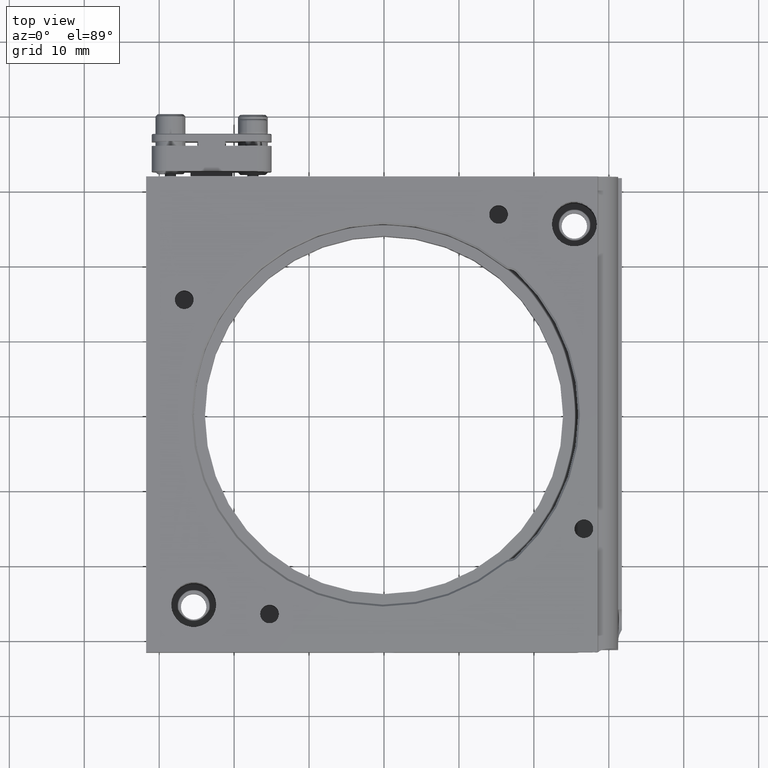
[diagram: clean part render]
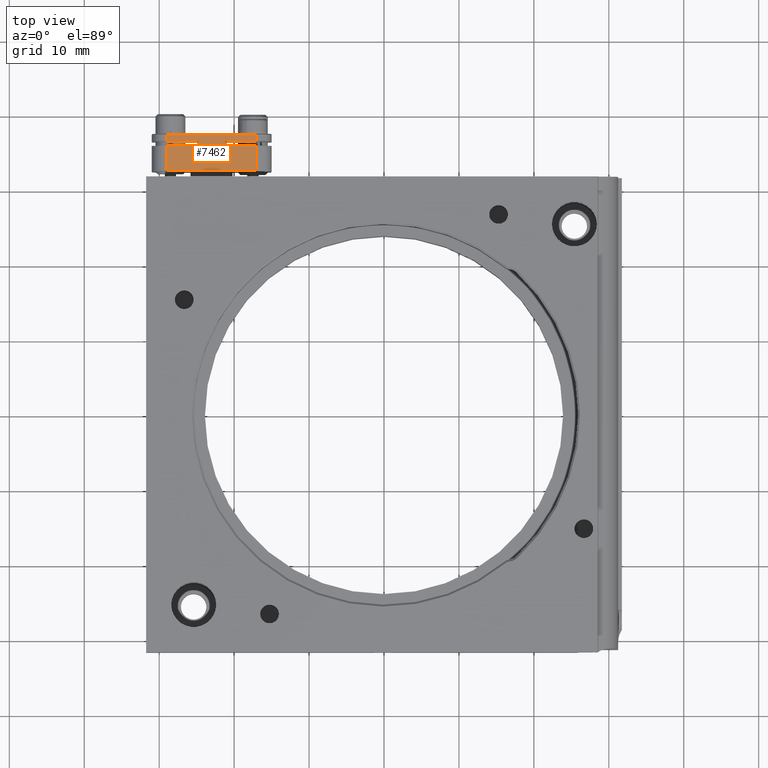
[diagram: same view with one face highlighted and labeled with its STEP entity id]
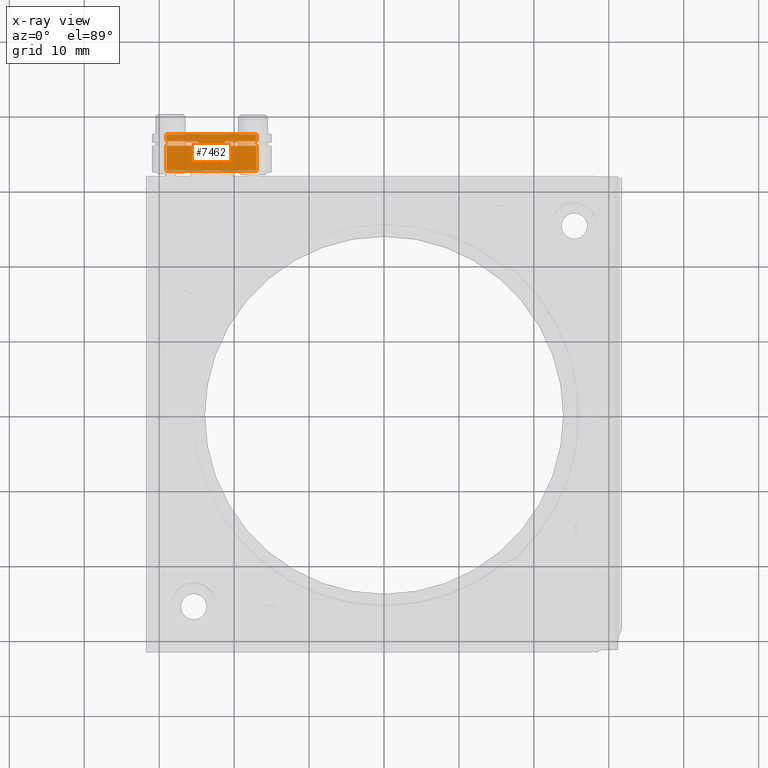
[diagram: x-ray of the same camera — body ghosted, the highlighted face saturated]
A machine part, top view. The second image highlights one B-rep face of the part: STEP entity #7462.
The next image is the same camera in x-ray: the body ghosted, the highlighted face saturated — about 0% of this face is hidden behind the body in this view.
In plain terms, the highlighted planar face has unit normal (0, 0, -1).
Its self-contained STEP definition (entity closure, byte-faithful):
#125 = EDGE_CURVE ( 'NONE', #5470, #12736, #13331, .T. ) ;
#205 = CARTESIAN_POINT ( 'NONE',  ( 6.000000000000003553, 3.400000000000002132, 5.750000000000000888 ) ) ;
#1249 = VERTEX_POINT ( 'NONE', #205 ) ;
#1294 = DIRECTION ( 'NONE',  ( -3.614007241618349264E-16, 1.000000000000000000, -0.000000000000000000 ) ) ;
#1361 = DIRECTION ( 'NONE',  ( -1.000000000000000000, -1.047259278399945846E-16, 0.000000000000000000 ) ) ;
#1387 = VERTEX_POINT ( 'NONE', #13016 ) ;
#1497 = DIRECTION ( 'NONE',  ( -1.000000000000000000, 1.047259278399945846E-16, -0.000000000000000000 ) ) ;
#1613 = VECTOR ( 'NONE', #1497, 1000.000000000000000 ) ;
#1645 = VECTOR ( 'NONE', #4471, 1000.000000000000000 ) ;
#1702 = CARTESIAN_POINT ( 'NONE',  ( 1.800000000000000266, 3.400000000000001688, 5.750000000000000888 ) ) ;
#1924 = ORIENTED_EDGE ( 'NONE', *, *, #7162, .T. ) ;
#1968 = CARTESIAN_POINT ( 'NONE',  ( 6.000000000000003553, 5.000000000000000000, 5.750000000000000888 ) ) ;
#2093 = EDGE_CURVE ( 'NONE', #4371, #12254, #2324, .T. ) ;
#2221 = VERTEX_POINT ( 'NONE', #10080 ) ;
#2282 = VECTOR ( 'NONE', #3607, 1000.000000000000000 ) ;
#2324 = LINE ( 'NONE', #4537, #1613 ) ;
#2339 = ORIENTED_EDGE ( 'NONE', *, *, #2502, .F. ) ;
#2443 = VECTOR ( 'NONE', #5014, 1000.000000000000000 ) ;
#2474 = CARTESIAN_POINT ( 'NONE',  ( -5.999999999999998224, 4.900000000000002132, 5.750000000000000888 ) ) ;
#2502 = EDGE_CURVE ( 'NONE', #12254, #8157, #9137, .T. ) ;
#3105 = LINE ( 'NONE', #1968, #2443 ) ;
#3106 = ORIENTED_EDGE ( 'NONE', *, *, #6643, .F. ) ;
#3138 = VECTOR ( 'NONE', #7985, 1000.000000000000000 ) ;
#3334 = VECTOR ( 'NONE', #1294, 1000.000000000000000 ) ;
#3390 = CARTESIAN_POINT ( 'NONE',  ( 1.800000000000000266, 3.400000000000001688, 5.750000000000000888 ) ) ;
#3607 = DIRECTION ( 'NONE',  ( -0.000000000000000000, 1.000000000000000000, -0.000000000000000000 ) ) ;
#3682 = VECTOR ( 'NONE', #8250, 1000.000000000000000 ) ;
#3875 = DIRECTION ( 'NONE',  ( 0.000000000000000000, -1.000000000000000000, 0.000000000000000000 ) ) ;
#3891 = DIRECTION ( 'NONE',  ( 0.000000000000000000, 0.000000000000000000, -1.000000000000000000 ) ) ;
#4121 = CARTESIAN_POINT ( 'NONE',  ( -1.799999999999999822, 3.400000000000001243, 5.750000000000000888 ) ) ;
#4198 = EDGE_CURVE ( 'NONE', #5188, #1249, #3105, .T. ) ;
#4236 = LINE ( 'NONE', #2474, #5289 ) ;
#4291 = LINE ( 'NONE', #12519, #2282 ) ;
#4371 = VERTEX_POINT ( 'NONE', #6421 ) ;
#4471 = DIRECTION ( 'NONE',  ( 1.000000000000000000, 1.047259278399945846E-16, 0.000000000000000000 ) ) ;
#4537 = CARTESIAN_POINT ( 'NONE',  ( 1.800000000000000044, 4.000000000000000888, 5.750000000000000888 ) ) ;
#4567 = CARTESIAN_POINT ( 'NONE',  ( -5.999999999999998224, 4.000000000000000000, 5.750000000000000888 ) ) ;
#4915 = PLANE ( 'NONE',  #12813 ) ;
#4975 = ORIENTED_EDGE ( 'NONE', *, *, #12556, .T. ) ;
#5014 = DIRECTION ( 'NONE',  ( -0.000000000000000000, 1.000000000000000000, -0.000000000000000000 ) ) ;
#5168 = CARTESIAN_POINT ( 'NONE',  ( 1.800000000000000044, 4.000000000000000888, 5.750000000000000888 ) ) ;
#5188 = VERTEX_POINT ( 'NONE', #6166 ) ;
#5238 = CARTESIAN_POINT ( 'NONE',  ( -1.800000000000000044, 4.000000000000000888, 5.750000000000000888 ) ) ;
#5289 = VECTOR ( 'NONE', #6608, 1000.000000000000000 ) ;
#5307 = VECTOR ( 'NONE', #11218, 1000.000000000000000 ) ;
#5385 = ORIENTED_EDGE ( 'NONE', *, *, #4198, .T. ) ;
#5470 = VERTEX_POINT ( 'NONE', #7904 ) ;
#5703 = CARTESIAN_POINT ( 'NONE',  ( -1.800000000000000044, 4.000000000000000888, 5.750000000000000888 ) ) ;
#5727 = ORIENTED_EDGE ( 'NONE', *, *, #6494, .T. ) ;
#5728 = ORIENTED_EDGE ( 'NONE', *, *, #7946, .F. ) ;
#6166 = CARTESIAN_POINT ( 'NONE',  ( 6.000000000000003553, 0.1000000000000011297, 5.750000000000000888 ) ) ;
#6421 = CARTESIAN_POINT ( 'NONE',  ( 6.000000000000001776, 4.000000000000000000, 5.750000000000000888 ) ) ;
#6494 = EDGE_CURVE ( 'NONE', #8642, #2221, #9257, .T. ) ;
#6511 = LINE ( 'NONE', #3390, #1645 ) ;
#6608 = DIRECTION ( 'NONE',  ( -1.000000000000000000, 0.000000000000000000, 0.000000000000000000 ) ) ;
#6643 = EDGE_CURVE ( 'NONE', #8642, #10168, #9384, .T. ) ;
#7039 = LINE ( 'NONE', #9988, #3138 ) ;
#7162 = EDGE_CURVE ( 'NONE', #1387, #5470, #4236, .T. ) ;
#7261 = DIRECTION ( 'NONE',  ( 0.000000000000000000, -1.000000000000000000, 0.000000000000000000 ) ) ;
#7387 = CARTESIAN_POINT ( 'NONE',  ( -5.999999999999998224, 5.000000000000000000, 5.750000000000000888 ) ) ;
#7451 = LINE ( 'NONE', #5238, #3334 ) ;
#7462 = ADVANCED_FACE ( 'NONE', ( #8283 ), #4915, .F. ) ;
#7698 = VECTOR ( 'NONE', #1361, 1000.000000000000000 ) ;
#7785 = LINE ( 'NONE', #5703, #7698 ) ;
#7904 = CARTESIAN_POINT ( 'NONE',  ( -5.999999999999998224, 4.900000000000002132, 5.750000000000000888 ) ) ;
#7946 = EDGE_CURVE ( 'NONE', #10168, #11126, #7451, .T. ) ;
#7985 = DIRECTION ( 'NONE',  ( 1.000000000000000000, 0.000000000000000000, 0.000000000000000000 ) ) ;
#8029 = DIRECTION ( 'NONE',  ( -1.000000000000000000, 0.000000000000000000, -0.000000000000000000 ) ) ;
#8157 = VERTEX_POINT ( 'NONE', #1702 ) ;
#8208 = ORIENTED_EDGE ( 'NONE', *, *, #10738, .F. ) ;
#8250 = DIRECTION ( 'NONE',  ( 1.000000000000000000, 1.570888917599918769E-16, -0.000000000000000000 ) ) ;
#8283 = FACE_OUTER_BOUND ( 'NONE', #11500, .T. ) ;
#8344 = ORIENTED_EDGE ( 'NONE', *, *, #2093, .F. ) ;
#8626 = VECTOR ( 'NONE', #7261, 1000.000000000000000 ) ;
#8642 = VERTEX_POINT ( 'NONE', #11251 ) ;
#8785 = CARTESIAN_POINT ( 'NONE',  ( -1.800000000000000044, 4.000000000000000888, 5.750000000000000888 ) ) ;
#8921 = EDGE_CURVE ( 'NONE', #4371, #1387, #4291, .T. ) ;
#9031 = CARTESIAN_POINT ( 'NONE',  ( -7.999999999999998224, 5.000000000000000000, 5.750000000000000888 ) ) ;
#9137 = LINE ( 'NONE', #5168, #5307 ) ;
#9257 = LINE ( 'NONE', #9321, #10606 ) ;
#9321 = CARTESIAN_POINT ( 'NONE',  ( -5.999999999999998224, 5.000000000000000000, 5.750000000000000888 ) ) ;
#9384 = LINE ( 'NONE', #4121, #3682 ) ;
#9407 = EDGE_CURVE ( 'NONE', #11126, #12736, #7785, .T. ) ;
#9988 = CARTESIAN_POINT ( 'NONE',  ( -7.999999999999998224, 0.1000000000000011297, 5.750000000000000888 ) ) ;
#10080 = CARTESIAN_POINT ( 'NONE',  ( -5.999999999999998224, 0.1000000000000011297, 5.750000000000000888 ) ) ;
#10168 = VERTEX_POINT ( 'NONE', #11385 ) ;
#10606 = VECTOR ( 'NONE', #3875, 1000.000000000000000 ) ;
#10674 = ORIENTED_EDGE ( 'NONE', *, *, #125, .T. ) ;
#10698 = ORIENTED_EDGE ( 'NONE', *, *, #8921, .T. ) ;
#10738 = EDGE_CURVE ( 'NONE', #8157, #1249, #6511, .T. ) ;
#11126 = VERTEX_POINT ( 'NONE', #8785 ) ;
#11218 = DIRECTION ( 'NONE',  ( 3.614007241618351729E-16, -1.000000000000000000, 0.000000000000000000 ) ) ;
#11251 = CARTESIAN_POINT ( 'NONE',  ( -5.999999999999998224, 3.400000000000000355, 5.750000000000000888 ) ) ;
#11385 = CARTESIAN_POINT ( 'NONE',  ( -1.799999999999999822, 3.400000000000001243, 5.750000000000000888 ) ) ;
#11500 = EDGE_LOOP ( 'NONE', ( #5727, #4975, #5385, #8208, #2339, #8344, #10698, #1924, #10674, #13205, #5728, #3106 ) ) ;
#12104 = CARTESIAN_POINT ( 'NONE',  ( 1.800000000000000044, 4.000000000000000888, 5.750000000000000888 ) ) ;
#12254 = VERTEX_POINT ( 'NONE', #12104 ) ;
#12519 = CARTESIAN_POINT ( 'NONE',  ( 6.000000000000003553, 5.000000000000000000, 5.750000000000000888 ) ) ;
#12556 = EDGE_CURVE ( 'NONE', #2221, #5188, #7039, .T. ) ;
#12736 = VERTEX_POINT ( 'NONE', #4567 ) ;
#12813 = AXIS2_PLACEMENT_3D ( 'NONE', #9031, #3891, #8029 ) ;
#13016 = CARTESIAN_POINT ( 'NONE',  ( 6.000000000000003553, 4.900000000000002132, 5.750000000000000888 ) ) ;
#13205 = ORIENTED_EDGE ( 'NONE', *, *, #9407, .F. ) ;
#13331 = LINE ( 'NONE', #7387, #8626 ) ;